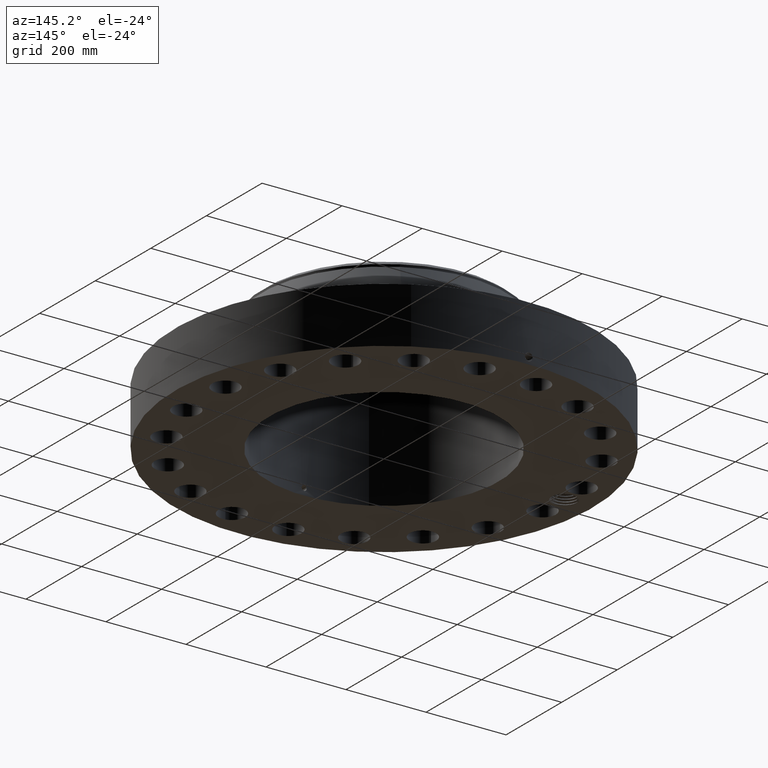
[diagram: clean part render]
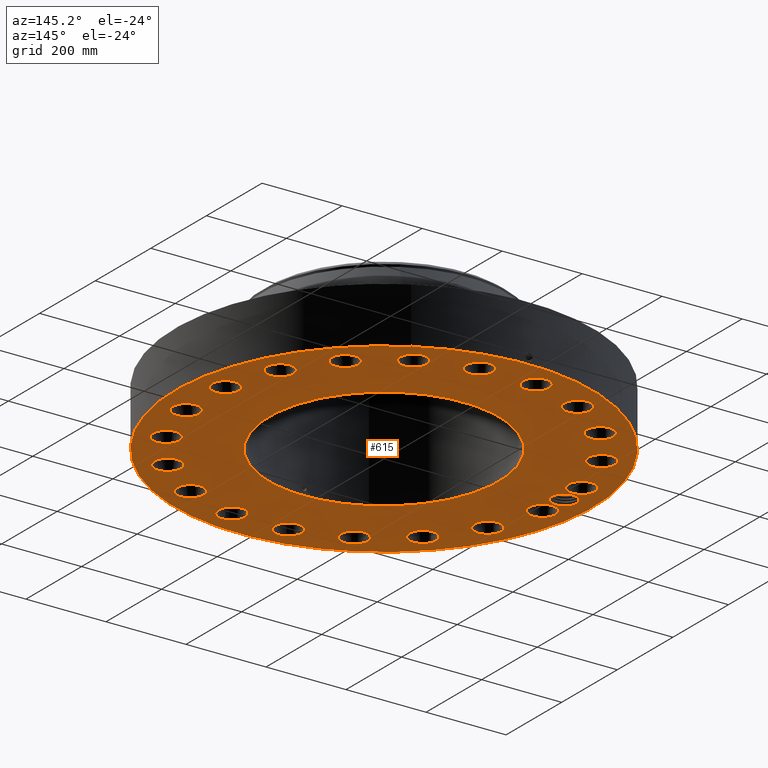
[diagram: same view with one face highlighted and labeled with its STEP entity id]
A machine part, auxiliary view. The second image highlights one B-rep face of the part: STEP entity #615.
In plain terms, the highlighted planar face has unit normal (0, 0, -1).
Its self-contained STEP definition (entity closure, byte-faithful):
#42=AXIS2_PLACEMENT_3D('Circle Axis2P3D',#40,#41,$) ;
#165=AXIS2_PLACEMENT_3D('Plane Axis2P3D',#162,#163,#164) ;
#169=AXIS2_PLACEMENT_3D('Circle Axis2P3D',#167,#168,$) ;
#178=AXIS2_PLACEMENT_3D('Circle Axis2P3D',#176,#177,$) ;
#187=AXIS2_PLACEMENT_3D('Circle Axis2P3D',#185,#186,$) ;
#239=AXIS2_PLACEMENT_3D('Circle Axis2P3D',#237,#238,$) ;
#248=AXIS2_PLACEMENT_3D('Circle Axis2P3D',#246,#247,$) ;
#257=AXIS2_PLACEMENT_3D('Circle Axis2P3D',#255,#256,$) ;
#266=AXIS2_PLACEMENT_3D('Circle Axis2P3D',#264,#265,$) ;
#275=AXIS2_PLACEMENT_3D('Circle Axis2P3D',#273,#274,$) ;
#284=AXIS2_PLACEMENT_3D('Circle Axis2P3D',#282,#283,$) ;
#293=AXIS2_PLACEMENT_3D('Circle Axis2P3D',#291,#292,$) ;
#302=AXIS2_PLACEMENT_3D('Circle Axis2P3D',#300,#301,$) ;
#311=AXIS2_PLACEMENT_3D('Circle Axis2P3D',#309,#310,$) ;
#320=AXIS2_PLACEMENT_3D('Circle Axis2P3D',#318,#319,$) ;
#329=AXIS2_PLACEMENT_3D('Circle Axis2P3D',#327,#328,$) ;
#338=AXIS2_PLACEMENT_3D('Circle Axis2P3D',#336,#337,$) ;
#347=AXIS2_PLACEMENT_3D('Circle Axis2P3D',#345,#346,$) ;
#356=AXIS2_PLACEMENT_3D('Circle Axis2P3D',#354,#355,$) ;
#365=AXIS2_PLACEMENT_3D('Circle Axis2P3D',#363,#364,$) ;
#374=AXIS2_PLACEMENT_3D('Circle Axis2P3D',#372,#373,$) ;
#383=AXIS2_PLACEMENT_3D('Circle Axis2P3D',#381,#382,$) ;
#392=AXIS2_PLACEMENT_3D('Circle Axis2P3D',#390,#391,$) ;
#401=AXIS2_PLACEMENT_3D('Circle Axis2P3D',#399,#400,$) ;
#410=AXIS2_PLACEMENT_3D('Circle Axis2P3D',#408,#409,$) ;
#419=AXIS2_PLACEMENT_3D('Circle Axis2P3D',#417,#418,$) ;
#428=AXIS2_PLACEMENT_3D('Circle Axis2P3D',#426,#427,$) ;
#437=AXIS2_PLACEMENT_3D('Circle Axis2P3D',#435,#436,$) ;
#446=AXIS2_PLACEMENT_3D('Circle Axis2P3D',#444,#445,$) ;
#455=AXIS2_PLACEMENT_3D('Circle Axis2P3D',#453,#454,$) ;
#464=AXIS2_PLACEMENT_3D('Circle Axis2P3D',#462,#463,$) ;
#473=AXIS2_PLACEMENT_3D('Circle Axis2P3D',#471,#472,$) ;
#482=AXIS2_PLACEMENT_3D('Circle Axis2P3D',#480,#481,$) ;
#491=AXIS2_PLACEMENT_3D('Circle Axis2P3D',#489,#490,$) ;
#500=AXIS2_PLACEMENT_3D('Circle Axis2P3D',#498,#499,$) ;
#509=AXIS2_PLACEMENT_3D('Circle Axis2P3D',#507,#508,$) ;
#518=AXIS2_PLACEMENT_3D('Circle Axis2P3D',#516,#517,$) ;
#527=AXIS2_PLACEMENT_3D('Circle Axis2P3D',#525,#526,$) ;
#536=AXIS2_PLACEMENT_3D('Circle Axis2P3D',#534,#535,$) ;
#545=AXIS2_PLACEMENT_3D('Circle Axis2P3D',#543,#544,$) ;
#554=AXIS2_PLACEMENT_3D('Circle Axis2P3D',#552,#553,$) ;
#563=AXIS2_PLACEMENT_3D('Circle Axis2P3D',#561,#562,$) ;
#572=AXIS2_PLACEMENT_3D('Circle Axis2P3D',#570,#571,$) ;
#581=AXIS2_PLACEMENT_3D('Circle Axis2P3D',#579,#580,$) ;
#590=AXIS2_PLACEMENT_3D('Circle Axis2P3D',#588,#589,$) ;
#599=AXIS2_PLACEMENT_3D('Circle Axis2P3D',#597,#598,$) ;
#608=AXIS2_PLACEMENT_3D('Circle Axis2P3D',#606,#607,$) ;
#40=CARTESIAN_POINT('Axis2P3D Location',(0.,0.,0.250000000001)) ;
#44=CARTESIAN_POINT('Vertex',(-9.82822354143,-17.9904425188,0.250000000001)) ;
#46=CARTESIAN_POINT('Vertex',(9.82822354143,17.9904425188,0.250000000001)) ;
#162=CARTESIAN_POINT('Axis2P3D Location',(0.,11.312,0.250000000001)) ;
#167=CARTESIAN_POINT('Axis2P3D Location',(0.,0.,0.250000000001)) ;
#176=CARTESIAN_POINT('Axis2P3D Location',(-17.7500000001,4.47585975282E-015,0.250000000001)) ;
#180=CARTESIAN_POINT('Vertex',(-18.7899353359,0.568119263248,0.250000000001)) ;
#182=CARTESIAN_POINT('Vertex',(-17.8089899747,1.18353081198,0.250000000001)) ;
#185=CARTESIAN_POINT('Axis2P3D Location',(-17.7500000001,4.47585975282E-015,0.250000000001)) ;
#189=CARTESIAN_POINT('Vertex',(-17.8088742218,-1.1835365757,0.250000000001)) ;
#193=CARTESIAN_POINT('Control Point',(-16.5000000001,-4.47585975282E-015,0.250000000001)) ;
#194=CARTESIAN_POINT('Control Point',(-16.5032558746,-0.101444346183,0.250000000001)) ;
#195=CARTESIAN_POINT('Control Point',(-16.5168082508,-0.202401625561,0.250000000001)) ;
#196=CARTESIAN_POINT('Control Point',(-16.540583922,-0.301441881833,0.250000000001)) ;
#197=CARTESIAN_POINT('Control Point',(-16.6078816029,-0.492990538809,0.250000000001)) ;
#198=CARTESIAN_POINT('Control Point',(-16.7121398176,-0.666296687585,0.250000000001)) ;
#199=CARTESIAN_POINT('Control Point',(-16.7729146593,-0.74716967611,0.250000000001)) ;
#200=CARTESIAN_POINT('Control Point',(-16.9099648467,-0.895071391448,0.250000000001)) ;
#201=CARTESIAN_POINT('Control Point',(-17.0736867875,-1.01158385697,0.250000000001)) ;
#202=CARTESIAN_POINT('Control Point',(-17.1611741745,-1.06109943399,0.250000000001)) ;
#203=CARTESIAN_POINT('Control Point',(-17.339418153,-1.13885717086,0.250000000001)) ;
#204=CARTESIAN_POINT('Control Point',(-17.5289290875,-1.17941138826,0.250000000001)) ;
#205=CARTESIAN_POINT('Control Point',(-17.6223308717,-1.18997723153,0.250000000001)) ;
#206=CARTESIAN_POINT('Control Point',(-17.7160467087,-1.19131456681,0.250000000001)) ;
#207=CARTESIAN_POINT('Control Point',(-17.8088742218,-1.1835365757,0.250000000001)) ;
#208=CARTESIAN_POINT('Vertex',(-16.5000000001,-6.71378962923E-015,0.250000000001)) ;
#212=CARTESIAN_POINT('Control Point',(-16.5000000001,-6.71378962923E-015,0.250000000001)) ;
#213=CARTESIAN_POINT('Control Point',(-16.5032552504,0.101424900788,0.250000000001)) ;
#214=CARTESIAN_POINT('Control Point',(-16.5168030362,0.202362871473,0.250000000001)) ;
#215=CARTESIAN_POINT('Control Point',(-16.5405789361,0.301404919525,0.250000000001)) ;
#216=CARTESIAN_POINT('Control Point',(-16.6078705523,0.492934453939,0.250000000001)) ;
#217=CARTESIAN_POINT('Control Point',(-16.7121624282,0.666307415799,0.250000000001)) ;
#218=CARTESIAN_POINT('Control Point',(-16.7729488053,0.74720746551,0.250000000001)) ;
#219=CARTESIAN_POINT('Control Point',(-16.9100050156,0.89511621482,0.250000000001)) ;
#220=CARTESIAN_POINT('Control Point',(-17.0737963036,1.0116545244,0.250000000001)) ;
#221=CARTESIAN_POINT('Control Point',(-17.1612927507,1.06115808243,0.250000000001)) ;
#222=CARTESIAN_POINT('Control Point',(-17.3055972068,1.12407477852,0.250000000001)) ;
#223=CARTESIAN_POINT('Control Point',(-17.4572408972,1.16261204217,0.250000000001)) ;
#224=CARTESIAN_POINT('Control Point',(-17.5130840046,1.17332131202,0.250000000001)) ;
#225=CARTESIAN_POINT('Control Point',(-17.6058927919,1.18546274977,0.250000000001)) ;
#226=CARTESIAN_POINT('Control Point',(-17.6991693686,1.18847142998,0.250000000001)) ;
#227=CARTESIAN_POINT('Control Point',(-17.7358749512,1.18823749869,0.250000000001)) ;
#228=CARTESIAN_POINT('Control Point',(-17.7725060417,1.18658796108,0.250000000001)) ;
#229=CARTESIAN_POINT('Control Point',(-17.8089899747,1.18353081198,0.250000000001)) ;
#237=CARTESIAN_POINT('Axis2P3D Location',(17.5314680456,-2.77671175448,0.250000000001)) ;
#241=CARTESIAN_POINT('Vertex',(18.6811012017,-3.40475921005,0.250000000001)) ;
#243=CARTESIAN_POINT('Vertex',(16.3818348896,-2.1486642989,0.250000000001)) ;
#246=CARTESIAN_POINT('Axis2P3D Location',(17.5314680456,-2.77671175448,0.250000000001)) ;
#255=CARTESIAN_POINT('Axis2P3D Location',(0.,0.,0.250000000001)) ;
#259=CARTESIAN_POINT('Vertex',(5.42326169271,9.92721394014,0.250000000001)) ;
#261=CARTESIAN_POINT('Vertex',(-5.42326169271,-9.92721394014,0.250000000001)) ;
#264=CARTESIAN_POINT('Axis2P3D Location',(0.,0.,0.250000000001)) ;
#273=CARTESIAN_POINT('Axis2P3D Location',(15.8153658044,-8.05833137041,0.250000000001)) ;
#277=CARTESIAN_POINT('Vertex',(14.916077037,-7.10576656272,0.250000000001)) ;
#279=CARTESIAN_POINT('Vertex',(16.7146545718,-9.0108961781,0.250000000001)) ;
#282=CARTESIAN_POINT('Axis2P3D Location',(15.8153658044,-8.05833137041,0.250000000001)) ;
#291=CARTESIAN_POINT('Axis2P3D Location',(12.5511453661,-12.5511453661,0.250000000001)) ;
#295=CARTESIAN_POINT('Vertex',(11.9902296377,-11.3673068866,0.250000000001)) ;
#297=CARTESIAN_POINT('Vertex',(13.1120610946,-13.7349838456,0.250000000001)) ;
#300=CARTESIAN_POINT('Axis2P3D Location',(12.5511453661,-12.5511453661,0.250000000001)) ;
#309=CARTESIAN_POINT('Axis2P3D Location',(8.05833137041,-15.8153658044,0.250000000001)) ;
#313=CARTESIAN_POINT('Vertex',(7.89069502055,-14.5161360117,0.250000000001)) ;
#315=CARTESIAN_POINT('Vertex',(8.22596772027,-17.1145955971,0.250000000001)) ;
#318=CARTESIAN_POINT('Axis2P3D Location',(8.05833137041,-15.8153658044,0.250000000001)) ;
#327=CARTESIAN_POINT('Axis2P3D Location',(2.77671175448,-17.5314680456,0.250000000001)) ;
#331=CARTESIAN_POINT('Vertex',(3.01876419712,-16.2440246041,0.250000000001)) ;
#333=CARTESIAN_POINT('Vertex',(2.53465931183,-18.8189114871,0.250000000001)) ;
#336=CARTESIAN_POINT('Axis2P3D Location',(2.77671175448,-17.5314680456,0.250000000001)) ;
#345=CARTESIAN_POINT('Axis2P3D Location',(-2.77671175448,-17.5314680456,0.250000000001)) ;
#349=CARTESIAN_POINT('Vertex',(-2.1486642989,-16.3818348896,0.250000000001)) ;
#351=CARTESIAN_POINT('Vertex',(-3.40475921005,-18.6811012017,0.250000000001)) ;
#354=CARTESIAN_POINT('Axis2P3D Location',(-2.77671175448,-17.5314680456,0.250000000001)) ;
#363=CARTESIAN_POINT('Axis2P3D Location',(-8.05833137041,-15.8153658044,0.250000000001)) ;
#367=CARTESIAN_POINT('Vertex',(-7.10576656272,-14.916077037,0.250000000001)) ;
#369=CARTESIAN_POINT('Vertex',(-9.0108961781,-16.7146545718,0.250000000001)) ;
#372=CARTESIAN_POINT('Axis2P3D Location',(-8.05833137041,-15.8153658044,0.250000000001)) ;
#381=CARTESIAN_POINT('Axis2P3D Location',(-12.5511453661,-12.5511453661,0.250000000001)) ;
#385=CARTESIAN_POINT('Vertex',(-11.3673068866,-11.9902296377,0.250000000001)) ;
#387=CARTESIAN_POINT('Vertex',(-13.7349838456,-13.1120610946,0.250000000001)) ;
#390=CARTESIAN_POINT('Axis2P3D Location',(-12.5511453661,-12.5511453661,0.250000000001)) ;
#399=CARTESIAN_POINT('Axis2P3D Location',(-15.8153658044,-8.05833137041,0.250000000001)) ;
#403=CARTESIAN_POINT('Vertex',(-14.5161360117,-7.89069502055,0.250000000001)) ;
#405=CARTESIAN_POINT('Vertex',(-17.1145955971,-8.22596772027,0.250000000001)) ;
#408=CARTESIAN_POINT('Axis2P3D Location',(-15.8153658044,-8.05833137041,0.250000000001)) ;
#417=CARTESIAN_POINT('Axis2P3D Location',(-17.5314680456,-2.77671175448,0.250000000001)) ;
#421=CARTESIAN_POINT('Vertex',(-16.2440246041,-3.01876419712,0.250000000001)) ;
#423=CARTESIAN_POINT('Vertex',(-18.8189114871,-2.53465931183,0.250000000001)) ;
#426=CARTESIAN_POINT('Axis2P3D Location',(-17.5314680456,-2.77671175448,0.250000000001)) ;
#435=CARTESIAN_POINT('Axis2P3D Location',(-17.5314680456,2.77671175448,0.250000000001)) ;
#439=CARTESIAN_POINT('Vertex',(-16.3818348896,2.1486642989,0.250000000001)) ;
#441=CARTESIAN_POINT('Vertex',(-18.6811012017,3.40475921005,0.250000000001)) ;
#444=CARTESIAN_POINT('Axis2P3D Location',(-17.5314680456,2.77671175448,0.250000000001)) ;
#453=CARTESIAN_POINT('Axis2P3D Location',(-15.8153658044,8.05833137041,0.250000000001)) ;
#457=CARTESIAN_POINT('Vertex',(-14.916077037,7.10576656272,0.250000000001)) ;
#459=CARTESIAN_POINT('Vertex',(-16.7146545718,9.0108961781,0.250000000001)) ;
#462=CARTESIAN_POINT('Axis2P3D Location',(-15.8153658044,8.05833137041,0.250000000001)) ;
#471=CARTESIAN_POINT('Axis2P3D Location',(-12.5511453661,12.5511453661,0.250000000001)) ;
#475=CARTESIAN_POINT('Vertex',(-11.9902296377,11.3673068866,0.250000000001)) ;
#477=CARTESIAN_POINT('Vertex',(-13.1120610946,13.7349838456,0.250000000001)) ;
#480=CARTESIAN_POINT('Axis2P3D Location',(-12.5511453661,12.5511453661,0.250000000001)) ;
#489=CARTESIAN_POINT('Axis2P3D Location',(-8.05833137041,15.8153658044,0.250000000001)) ;
#493=CARTESIAN_POINT('Vertex',(-7.89069502055,14.5161360117,0.250000000001)) ;
#495=CARTESIAN_POINT('Vertex',(-8.22596772027,17.1145955971,0.250000000001)) ;
#498=CARTESIAN_POINT('Axis2P3D Location',(-8.05833137041,15.8153658044,0.250000000001)) ;
#507=CARTESIAN_POINT('Axis2P3D Location',(-2.77671175448,17.5314680456,0.250000000001)) ;
#511=CARTESIAN_POINT('Vertex',(-3.01876419712,16.2440246041,0.250000000001)) ;
#513=CARTESIAN_POINT('Vertex',(-2.53465931183,18.8189114871,0.250000000001)) ;
#516=CARTESIAN_POINT('Axis2P3D Location',(-2.77671175448,17.5314680456,0.250000000001)) ;
#525=CARTESIAN_POINT('Axis2P3D Location',(2.77671175448,17.5314680456,0.250000000001)) ;
#529=CARTESIAN_POINT('Vertex',(2.1486642989,16.3818348896,0.250000000001)) ;
#531=CARTESIAN_POINT('Vertex',(3.40475921005,18.6811012017,0.250000000001)) ;
#534=CARTESIAN_POINT('Axis2P3D Location',(2.77671175448,17.5314680456,0.250000000001)) ;
#543=CARTESIAN_POINT('Axis2P3D Location',(8.05833137041,15.8153658044,0.250000000001)) ;
#547=CARTESIAN_POINT('Vertex',(7.10576656272,14.916077037,0.250000000001)) ;
#549=CARTESIAN_POINT('Vertex',(9.0108961781,16.7146545718,0.250000000001)) ;
#552=CARTESIAN_POINT('Axis2P3D Location',(8.05833137041,15.8153658044,0.250000000001)) ;
#561=CARTESIAN_POINT('Axis2P3D Location',(12.5511453661,12.5511453661,0.250000000001)) ;
#565=CARTESIAN_POINT('Vertex',(11.3673068866,11.9902296377,0.250000000001)) ;
#567=CARTESIAN_POINT('Vertex',(13.7349838456,13.1120610946,0.250000000001)) ;
#570=CARTESIAN_POINT('Axis2P3D Location',(12.5511453661,12.5511453661,0.250000000001)) ;
#579=CARTESIAN_POINT('Axis2P3D Location',(15.8153658044,8.05833137041,0.250000000001)) ;
#583=CARTESIAN_POINT('Vertex',(14.5161360117,7.89069502055,0.250000000001)) ;
#585=CARTESIAN_POINT('Vertex',(17.1145955971,8.22596772027,0.250000000001)) ;
#588=CARTESIAN_POINT('Axis2P3D Location',(15.8153658044,8.05833137041,0.250000000001)) ;
#597=CARTESIAN_POINT('Axis2P3D Location',(17.5314680456,2.77671175448,0.250000000001)) ;
#601=CARTESIAN_POINT('Vertex',(16.2440246041,3.01876419712,0.250000000001)) ;
#603=CARTESIAN_POINT('Vertex',(18.8189114871,2.53465931183,0.250000000001)) ;
#606=CARTESIAN_POINT('Axis2P3D Location',(17.5314680456,2.77671175448,0.250000000001)) ;
#41=DIRECTION('Axis2P3D Direction',(0.,0.,-0.0393700787402)) ;
#163=DIRECTION('Axis2P3D Direction',(0.,0.,-0.0393700787402)) ;
#164=DIRECTION('Axis2P3D XDirection',(0.0393700787402,0.,0.)) ;
#168=DIRECTION('Axis2P3D Direction',(0.,0.,-0.0393700787402)) ;
#177=DIRECTION('Axis2P3D Direction',(0.,0.,-0.0393700787402)) ;
#186=DIRECTION('Axis2P3D Direction',(0.,0.,-0.0393700787402)) ;
#238=DIRECTION('Axis2P3D Direction',(0.,0.,-0.0393700787402)) ;
#247=DIRECTION('Axis2P3D Direction',(0.,0.,-0.0393700787402)) ;
#256=DIRECTION('Axis2P3D Direction',(0.,0.,-0.0393700787402)) ;
#265=DIRECTION('Axis2P3D Direction',(0.,0.,-0.0393700787402)) ;
#274=DIRECTION('Axis2P3D Direction',(0.,0.,-0.0393700787402)) ;
#283=DIRECTION('Axis2P3D Direction',(0.,0.,-0.0393700787402)) ;
#292=DIRECTION('Axis2P3D Direction',(0.,0.,-0.0393700787402)) ;
#301=DIRECTION('Axis2P3D Direction',(0.,0.,-0.0393700787402)) ;
#310=DIRECTION('Axis2P3D Direction',(0.,0.,-0.0393700787402)) ;
#319=DIRECTION('Axis2P3D Direction',(0.,0.,-0.0393700787402)) ;
#328=DIRECTION('Axis2P3D Direction',(0.,0.,-0.0393700787402)) ;
#337=DIRECTION('Axis2P3D Direction',(0.,0.,-0.0393700787402)) ;
#346=DIRECTION('Axis2P3D Direction',(0.,0.,-0.0393700787402)) ;
#355=DIRECTION('Axis2P3D Direction',(0.,0.,-0.0393700787402)) ;
#364=DIRECTION('Axis2P3D Direction',(0.,0.,-0.0393700787402)) ;
#373=DIRECTION('Axis2P3D Direction',(0.,0.,-0.0393700787402)) ;
#382=DIRECTION('Axis2P3D Direction',(0.,0.,-0.0393700787402)) ;
#391=DIRECTION('Axis2P3D Direction',(0.,0.,-0.0393700787402)) ;
#400=DIRECTION('Axis2P3D Direction',(0.,0.,-0.0393700787402)) ;
#409=DIRECTION('Axis2P3D Direction',(0.,0.,-0.0393700787402)) ;
#418=DIRECTION('Axis2P3D Direction',(0.,0.,-0.0393700787402)) ;
#427=DIRECTION('Axis2P3D Direction',(0.,0.,-0.0393700787402)) ;
#436=DIRECTION('Axis2P3D Direction',(0.,0.,-0.0393700787402)) ;
#445=DIRECTION('Axis2P3D Direction',(0.,0.,-0.0393700787402)) ;
#454=DIRECTION('Axis2P3D Direction',(0.,0.,-0.0393700787402)) ;
#463=DIRECTION('Axis2P3D Direction',(0.,0.,-0.0393700787402)) ;
#472=DIRECTION('Axis2P3D Direction',(0.,0.,-0.0393700787402)) ;
#481=DIRECTION('Axis2P3D Direction',(0.,0.,-0.0393700787402)) ;
#490=DIRECTION('Axis2P3D Direction',(0.,0.,-0.0393700787402)) ;
#499=DIRECTION('Axis2P3D Direction',(0.,0.,-0.0393700787402)) ;
#508=DIRECTION('Axis2P3D Direction',(0.,0.,-0.0393700787402)) ;
#517=DIRECTION('Axis2P3D Direction',(0.,0.,-0.0393700787402)) ;
#526=DIRECTION('Axis2P3D Direction',(0.,0.,-0.0393700787402)) ;
#535=DIRECTION('Axis2P3D Direction',(0.,0.,-0.0393700787402)) ;
#544=DIRECTION('Axis2P3D Direction',(0.,0.,-0.0393700787402)) ;
#553=DIRECTION('Axis2P3D Direction',(0.,0.,-0.0393700787402)) ;
#562=DIRECTION('Axis2P3D Direction',(0.,0.,-0.0393700787402)) ;
#571=DIRECTION('Axis2P3D Direction',(0.,0.,-0.0393700787402)) ;
#580=DIRECTION('Axis2P3D Direction',(0.,0.,-0.0393700787402)) ;
#589=DIRECTION('Axis2P3D Direction',(0.,0.,-0.0393700787402)) ;
#598=DIRECTION('Axis2P3D Direction',(0.,0.,-0.0393700787402)) ;
#607=DIRECTION('Axis2P3D Direction',(0.,0.,-0.0393700787402)) ;
#173=ORIENTED_EDGE('',*,*,#48,.T.) ;
#174=ORIENTED_EDGE('',*,*,#171,.T.) ;
#232=ORIENTED_EDGE('',*,*,#184,.F.) ;
#233=ORIENTED_EDGE('',*,*,#191,.F.) ;
#234=ORIENTED_EDGE('',*,*,#210,.F.) ;
#235=ORIENTED_EDGE('',*,*,#230,.T.) ;
#252=ORIENTED_EDGE('',*,*,#245,.F.) ;
#253=ORIENTED_EDGE('',*,*,#250,.F.) ;
#270=ORIENTED_EDGE('',*,*,#263,.F.) ;
#271=ORIENTED_EDGE('',*,*,#268,.F.) ;
#288=ORIENTED_EDGE('',*,*,#281,.F.) ;
#289=ORIENTED_EDGE('',*,*,#286,.F.) ;
#306=ORIENTED_EDGE('',*,*,#299,.F.) ;
#307=ORIENTED_EDGE('',*,*,#304,.F.) ;
#324=ORIENTED_EDGE('',*,*,#317,.F.) ;
#325=ORIENTED_EDGE('',*,*,#322,.F.) ;
#342=ORIENTED_EDGE('',*,*,#335,.F.) ;
#343=ORIENTED_EDGE('',*,*,#340,.F.) ;
#360=ORIENTED_EDGE('',*,*,#353,.F.) ;
#361=ORIENTED_EDGE('',*,*,#358,.F.) ;
#378=ORIENTED_EDGE('',*,*,#371,.F.) ;
#379=ORIENTED_EDGE('',*,*,#376,.F.) ;
#396=ORIENTED_EDGE('',*,*,#389,.F.) ;
#397=ORIENTED_EDGE('',*,*,#394,.F.) ;
#414=ORIENTED_EDGE('',*,*,#407,.F.) ;
#415=ORIENTED_EDGE('',*,*,#412,.F.) ;
#432=ORIENTED_EDGE('',*,*,#425,.F.) ;
#433=ORIENTED_EDGE('',*,*,#430,.F.) ;
#450=ORIENTED_EDGE('',*,*,#443,.F.) ;
#451=ORIENTED_EDGE('',*,*,#448,.F.) ;
#468=ORIENTED_EDGE('',*,*,#461,.F.) ;
#469=ORIENTED_EDGE('',*,*,#466,.F.) ;
#486=ORIENTED_EDGE('',*,*,#479,.F.) ;
#487=ORIENTED_EDGE('',*,*,#484,.F.) ;
#504=ORIENTED_EDGE('',*,*,#497,.F.) ;
#505=ORIENTED_EDGE('',*,*,#502,.F.) ;
#522=ORIENTED_EDGE('',*,*,#515,.F.) ;
#523=ORIENTED_EDGE('',*,*,#520,.F.) ;
#540=ORIENTED_EDGE('',*,*,#533,.F.) ;
#541=ORIENTED_EDGE('',*,*,#538,.F.) ;
#558=ORIENTED_EDGE('',*,*,#551,.F.) ;
#559=ORIENTED_EDGE('',*,*,#556,.F.) ;
#576=ORIENTED_EDGE('',*,*,#569,.F.) ;
#577=ORIENTED_EDGE('',*,*,#574,.F.) ;
#594=ORIENTED_EDGE('',*,*,#587,.F.) ;
#595=ORIENTED_EDGE('',*,*,#592,.F.) ;
#612=ORIENTED_EDGE('',*,*,#605,.F.) ;
#613=ORIENTED_EDGE('',*,*,#610,.F.) ;
#236=FACE_BOUND('',#231,.T.) ;
#254=FACE_BOUND('',#251,.T.) ;
#272=FACE_BOUND('',#269,.T.) ;
#290=FACE_BOUND('',#287,.T.) ;
#308=FACE_BOUND('',#305,.T.) ;
#326=FACE_BOUND('',#323,.T.) ;
#344=FACE_BOUND('',#341,.T.) ;
#362=FACE_BOUND('',#359,.T.) ;
#380=FACE_BOUND('',#377,.T.) ;
#398=FACE_BOUND('',#395,.T.) ;
#416=FACE_BOUND('',#413,.T.) ;
#434=FACE_BOUND('',#431,.T.) ;
#452=FACE_BOUND('',#449,.T.) ;
#470=FACE_BOUND('',#467,.T.) ;
#488=FACE_BOUND('',#485,.T.) ;
#506=FACE_BOUND('',#503,.T.) ;
#524=FACE_BOUND('',#521,.T.) ;
#542=FACE_BOUND('',#539,.T.) ;
#560=FACE_BOUND('',#557,.T.) ;
#578=FACE_BOUND('',#575,.T.) ;
#596=FACE_BOUND('',#593,.T.) ;
#614=FACE_BOUND('',#611,.T.) ;
#615=ADVANCED_FACE('PartBody',(#175,#236,#254,#272,#290,#308,#326,#344,#362,#380,#398,#416,#434,#452,#470,#488,#506,#524,#542,#560,#578,#596,#614),#166,.T.) ;
#192=B_SPLINE_CURVE_WITH_KNOTS('',5,(#193,#194,#195,#196,#197,#198,#199,#200,#201,#202,#203,#204,#205,#206,#207),.UNSPECIFIED.,.F.,.U.,(6,3,3,3,6),(0.,17.7884213942,35.5918239432,53.4046303865,70.1679596261),.UNSPECIFIED.) ;
#211=B_SPLINE_CURVE_WITH_KNOTS('',5,(#212,#213,#214,#215,#216,#217,#218,#219,#220,#221,#222,#223,#224,#225,#226,#227,#228,#229),.UNSPECIFIED.,.F.,.U.,(6,3,3,3,3,6),(0.,17.7850116141,35.5728860033,53.3543293659,63.5115604329,70.1022895652),.UNSPECIFIED.) ;
#43=CIRCLE('generated circle',#42,20.5000000001) ;
#170=CIRCLE('generated circle',#169,20.5000000001) ;
#179=CIRCLE('generated circle',#178,1.185) ;
#188=CIRCLE('generated circle',#187,1.185) ;
#240=CIRCLE('generated circle',#239,1.31000000001) ;
#249=CIRCLE('generated circle',#248,1.31000000001) ;
#258=CIRCLE('generated circle',#257,11.312) ;
#267=CIRCLE('generated circle',#266,11.312) ;
#276=CIRCLE('generated circle',#275,1.31000000001) ;
#285=CIRCLE('generated circle',#284,1.31000000001) ;
#294=CIRCLE('generated circle',#293,1.31000000001) ;
#303=CIRCLE('generated circle',#302,1.31000000001) ;
#312=CIRCLE('generated circle',#311,1.31000000001) ;
#321=CIRCLE('generated circle',#320,1.31000000001) ;
#330=CIRCLE('generated circle',#329,1.31000000001) ;
#339=CIRCLE('generated circle',#338,1.31000000001) ;
#348=CIRCLE('generated circle',#347,1.31000000001) ;
#357=CIRCLE('generated circle',#356,1.31000000001) ;
#366=CIRCLE('generated circle',#365,1.31000000001) ;
#375=CIRCLE('generated circle',#374,1.31000000001) ;
#384=CIRCLE('generated circle',#383,1.31000000001) ;
#393=CIRCLE('generated circle',#392,1.31000000001) ;
#402=CIRCLE('generated circle',#401,1.31000000001) ;
#411=CIRCLE('generated circle',#410,1.31000000001) ;
#420=CIRCLE('generated circle',#419,1.31000000001) ;
#429=CIRCLE('generated circle',#428,1.31000000001) ;
#438=CIRCLE('generated circle',#437,1.31000000001) ;
#447=CIRCLE('generated circle',#446,1.31000000001) ;
#456=CIRCLE('generated circle',#455,1.31000000001) ;
#465=CIRCLE('generated circle',#464,1.31000000001) ;
#474=CIRCLE('generated circle',#473,1.31000000001) ;
#483=CIRCLE('generated circle',#482,1.31000000001) ;
#492=CIRCLE('generated circle',#491,1.31000000001) ;
#501=CIRCLE('generated circle',#500,1.31000000001) ;
#510=CIRCLE('generated circle',#509,1.31000000001) ;
#519=CIRCLE('generated circle',#518,1.31000000001) ;
#528=CIRCLE('generated circle',#527,1.31000000001) ;
#537=CIRCLE('generated circle',#536,1.31000000001) ;
#546=CIRCLE('generated circle',#545,1.31000000001) ;
#555=CIRCLE('generated circle',#554,1.31000000001) ;
#564=CIRCLE('generated circle',#563,1.31000000001) ;
#573=CIRCLE('generated circle',#572,1.31000000001) ;
#582=CIRCLE('generated circle',#581,1.31000000001) ;
#591=CIRCLE('generated circle',#590,1.31000000001) ;
#600=CIRCLE('generated circle',#599,1.31000000001) ;
#609=CIRCLE('generated circle',#608,1.31000000001) ;
#48=EDGE_CURVE('',#45,#47,#43,.T.) ;
#171=EDGE_CURVE('',#47,#45,#170,.T.) ;
#184=EDGE_CURVE('',#181,#183,#179,.T.) ;
#191=EDGE_CURVE('',#190,#181,#188,.T.) ;
#210=EDGE_CURVE('',#209,#190,#192,.T.) ;
#230=EDGE_CURVE('',#209,#183,#211,.T.) ;
#245=EDGE_CURVE('',#242,#244,#240,.T.) ;
#250=EDGE_CURVE('',#244,#242,#249,.T.) ;
#263=EDGE_CURVE('',#260,#262,#258,.T.) ;
#268=EDGE_CURVE('',#262,#260,#267,.T.) ;
#281=EDGE_CURVE('',#278,#280,#276,.T.) ;
#286=EDGE_CURVE('',#280,#278,#285,.T.) ;
#299=EDGE_CURVE('',#296,#298,#294,.T.) ;
#304=EDGE_CURVE('',#298,#296,#303,.T.) ;
#317=EDGE_CURVE('',#314,#316,#312,.T.) ;
#322=EDGE_CURVE('',#316,#314,#321,.T.) ;
#335=EDGE_CURVE('',#332,#334,#330,.T.) ;
#340=EDGE_CURVE('',#334,#332,#339,.T.) ;
#353=EDGE_CURVE('',#350,#352,#348,.T.) ;
#358=EDGE_CURVE('',#352,#350,#357,.T.) ;
#371=EDGE_CURVE('',#368,#370,#366,.T.) ;
#376=EDGE_CURVE('',#370,#368,#375,.T.) ;
#389=EDGE_CURVE('',#386,#388,#384,.T.) ;
#394=EDGE_CURVE('',#388,#386,#393,.T.) ;
#407=EDGE_CURVE('',#404,#406,#402,.T.) ;
#412=EDGE_CURVE('',#406,#404,#411,.T.) ;
#425=EDGE_CURVE('',#422,#424,#420,.T.) ;
#430=EDGE_CURVE('',#424,#422,#429,.T.) ;
#443=EDGE_CURVE('',#440,#442,#438,.T.) ;
#448=EDGE_CURVE('',#442,#440,#447,.T.) ;
#461=EDGE_CURVE('',#458,#460,#456,.T.) ;
#466=EDGE_CURVE('',#460,#458,#465,.T.) ;
#479=EDGE_CURVE('',#476,#478,#474,.T.) ;
#484=EDGE_CURVE('',#478,#476,#483,.T.) ;
#497=EDGE_CURVE('',#494,#496,#492,.T.) ;
#502=EDGE_CURVE('',#496,#494,#501,.T.) ;
#515=EDGE_CURVE('',#512,#514,#510,.T.) ;
#520=EDGE_CURVE('',#514,#512,#519,.T.) ;
#533=EDGE_CURVE('',#530,#532,#528,.T.) ;
#538=EDGE_CURVE('',#532,#530,#537,.T.) ;
#551=EDGE_CURVE('',#548,#550,#546,.T.) ;
#556=EDGE_CURVE('',#550,#548,#555,.T.) ;
#569=EDGE_CURVE('',#566,#568,#564,.T.) ;
#574=EDGE_CURVE('',#568,#566,#573,.T.) ;
#587=EDGE_CURVE('',#584,#586,#582,.T.) ;
#592=EDGE_CURVE('',#586,#584,#591,.T.) ;
#605=EDGE_CURVE('',#602,#604,#600,.T.) ;
#610=EDGE_CURVE('',#604,#602,#609,.T.) ;
#172=EDGE_LOOP('',(#173,#174)) ;
#231=EDGE_LOOP('',(#232,#233,#234,#235)) ;
#251=EDGE_LOOP('',(#252,#253)) ;
#269=EDGE_LOOP('',(#270,#271)) ;
#287=EDGE_LOOP('',(#288,#289)) ;
#305=EDGE_LOOP('',(#306,#307)) ;
#323=EDGE_LOOP('',(#324,#325)) ;
#341=EDGE_LOOP('',(#342,#343)) ;
#359=EDGE_LOOP('',(#360,#361)) ;
#377=EDGE_LOOP('',(#378,#379)) ;
#395=EDGE_LOOP('',(#396,#397)) ;
#413=EDGE_LOOP('',(#414,#415)) ;
#431=EDGE_LOOP('',(#432,#433)) ;
#449=EDGE_LOOP('',(#450,#451)) ;
#467=EDGE_LOOP('',(#468,#469)) ;
#485=EDGE_LOOP('',(#486,#487)) ;
#503=EDGE_LOOP('',(#504,#505)) ;
#521=EDGE_LOOP('',(#522,#523)) ;
#539=EDGE_LOOP('',(#540,#541)) ;
#557=EDGE_LOOP('',(#558,#559)) ;
#575=EDGE_LOOP('',(#576,#577)) ;
#593=EDGE_LOOP('',(#594,#595)) ;
#611=EDGE_LOOP('',(#612,#613)) ;
#175=FACE_OUTER_BOUND('',#172,.T.) ;
#166=PLANE('',#165) ;
#45=VERTEX_POINT('',#44) ;
#47=VERTEX_POINT('',#46) ;
#181=VERTEX_POINT('',#180) ;
#183=VERTEX_POINT('',#182) ;
#190=VERTEX_POINT('',#189) ;
#209=VERTEX_POINT('',#208) ;
#242=VERTEX_POINT('',#241) ;
#244=VERTEX_POINT('',#243) ;
#260=VERTEX_POINT('',#259) ;
#262=VERTEX_POINT('',#261) ;
#278=VERTEX_POINT('',#277) ;
#280=VERTEX_POINT('',#279) ;
#296=VERTEX_POINT('',#295) ;
#298=VERTEX_POINT('',#297) ;
#314=VERTEX_POINT('',#313) ;
#316=VERTEX_POINT('',#315) ;
#332=VERTEX_POINT('',#331) ;
#334=VERTEX_POINT('',#333) ;
#350=VERTEX_POINT('',#349) ;
#352=VERTEX_POINT('',#351) ;
#368=VERTEX_POINT('',#367) ;
#370=VERTEX_POINT('',#369) ;
#386=VERTEX_POINT('',#385) ;
#388=VERTEX_POINT('',#387) ;
#404=VERTEX_POINT('',#403) ;
#406=VERTEX_POINT('',#405) ;
#422=VERTEX_POINT('',#421) ;
#424=VERTEX_POINT('',#423) ;
#440=VERTEX_POINT('',#439) ;
#442=VERTEX_POINT('',#441) ;
#458=VERTEX_POINT('',#457) ;
#460=VERTEX_POINT('',#459) ;
#476=VERTEX_POINT('',#475) ;
#478=VERTEX_POINT('',#477) ;
#494=VERTEX_POINT('',#493) ;
#496=VERTEX_POINT('',#495) ;
#512=VERTEX_POINT('',#511) ;
#514=VERTEX_POINT('',#513) ;
#530=VERTEX_POINT('',#529) ;
#532=VERTEX_POINT('',#531) ;
#548=VERTEX_POINT('',#547) ;
#550=VERTEX_POINT('',#549) ;
#566=VERTEX_POINT('',#565) ;
#568=VERTEX_POINT('',#567) ;
#584=VERTEX_POINT('',#583) ;
#586=VERTEX_POINT('',#585) ;
#602=VERTEX_POINT('',#601) ;
#604=VERTEX_POINT('',#603) ;